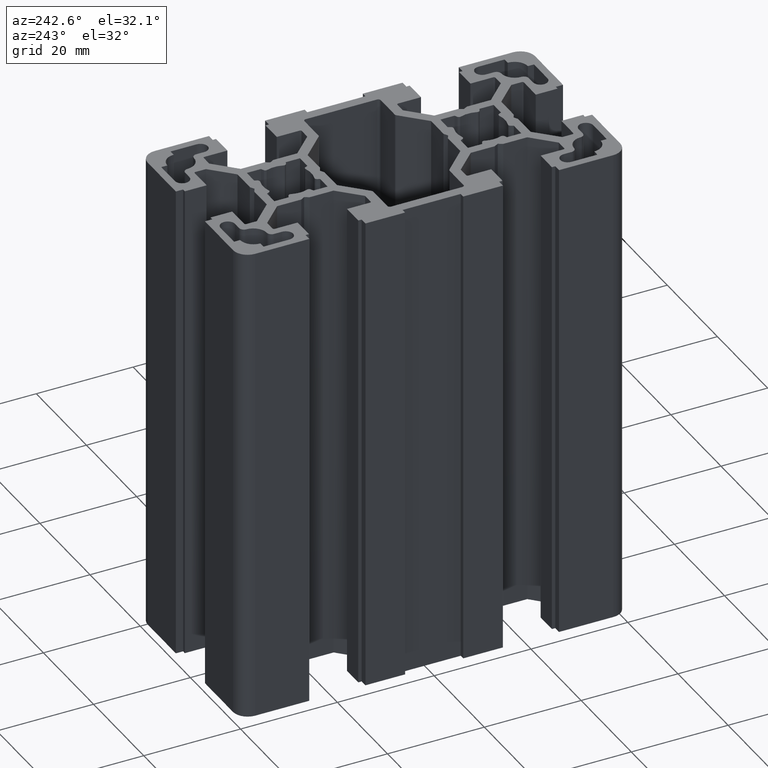
[diagram: clean part render]
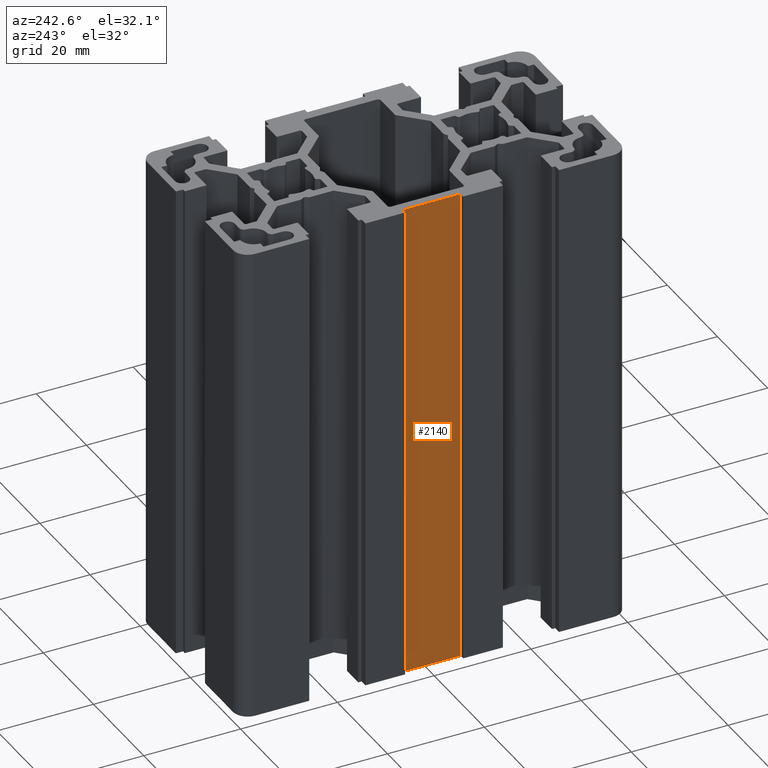
[diagram: same view with one face highlighted and labeled with its STEP entity id]
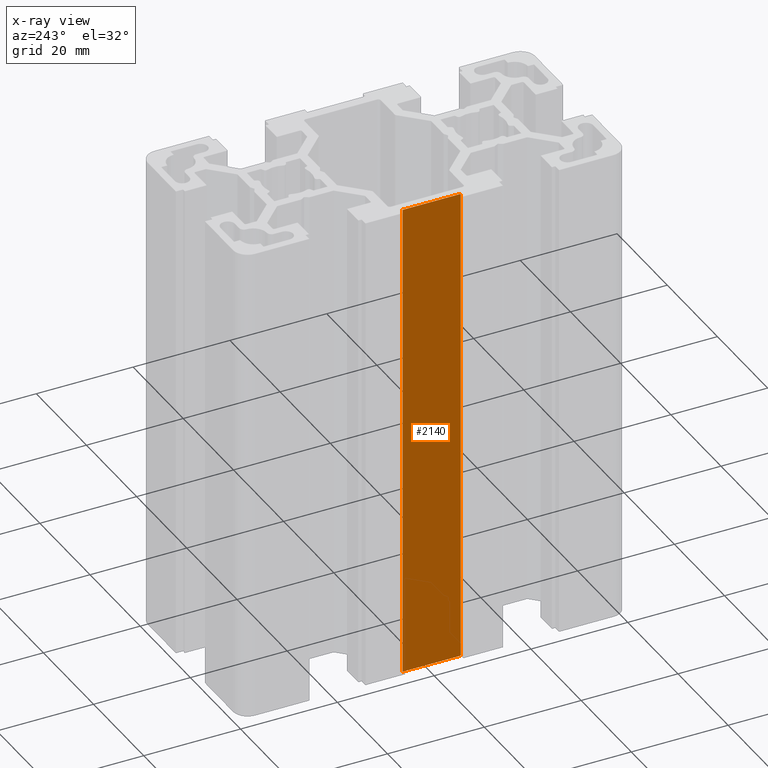
[diagram: x-ray of the same camera — body ghosted, the highlighted face saturated]
A machine part, auxiliary view. The second image highlights one B-rep face of the part: STEP entity #2140.
The next image is the same camera in x-ray: the body ghosted, the highlighted face saturated — about 0% of this face is hidden behind the body in this view.
In plain terms, the highlighted planar face has unit normal (1, 0, 0).
Its self-contained STEP definition (entity closure, byte-faithful):
#1687 = EDGE_CURVE ( 'NONE', #1704, #1705, #6067, .T. ) ;
#1704 = VERTEX_POINT ( 'NONE', #6054 ) ;
#1705 = VERTEX_POINT ( 'NONE', #6093 ) ;
#2096 = EDGE_LOOP ( 'NONE', ( #2141, #2139, #2190, #2143 ) ) ;
#2137 = EDGE_CURVE ( 'NONE', #2781, #1705, #6866, .T. ) ;
#2139 = ORIENTED_EDGE ( 'NONE', *, *, #2137, .F. ) ;
#2140 = ADVANCED_FACE ( 'NONE', ( #6817 ), #6816, .F. ) ;
#2141 = ORIENTED_EDGE ( 'NONE', *, *, #1687, .T. ) ;
#2143 = ORIENTED_EDGE ( 'NONE', *, *, #2153, .T. ) ;
#2153 = EDGE_CURVE ( 'NONE', #2805, #1704, #6857, .T. ) ;
#2190 = ORIENTED_EDGE ( 'NONE', *, *, #2795, .F. ) ;
#2781 = VERTEX_POINT ( 'NONE', #7822 ) ;
#2795 = EDGE_CURVE ( 'NONE', #2805, #2781, #7557, .T. ) ;
#2805 = VERTEX_POINT ( 'NONE', #7849 ) ;
#6054 = CARTESIAN_POINT ( 'NONE',  ( -19.00000000000000000, 6.000000190734882100, 0.0000000000000000000 ) ) ;
#6064 = DIRECTION ( 'NONE',  ( -0.0000000000000000000, -1.000000000000000000, -0.0000000000000000000 ) ) ;
#6065 = VECTOR ( 'NONE', #6064, 1000.000000000000000 ) ;
#6066 = CARTESIAN_POINT ( 'NONE',  ( -19.00000000000000000, -5.999999809265117900, 0.0000000000000000000 ) ) ;
#6067 = LINE ( 'NONE', #6066, #6065 ) ;
#6093 = CARTESIAN_POINT ( 'NONE',  ( -19.00000000000000000, -5.999999809265117900, 0.0000000000000000000 ) ) ;
#6816 = PLANE ( 'NONE',  #6824 ) ;
#6817 = FACE_OUTER_BOUND ( 'NONE', #2096, .T. ) ;
#6824 = AXIS2_PLACEMENT_3D ( 'NONE', #6867, #6859, #6858 ) ;
#6846 = DIRECTION ( 'NONE',  ( -0.0000000000000000000, -0.0000000000000000000, -1.000000000000000000 ) ) ;
#6851 = VECTOR ( 'NONE', #6846, 1000.000000000000000 ) ;
#6852 = CARTESIAN_POINT ( 'NONE',  ( -19.00000000000000000, 6.000000190734882100, 100.0000000000000000 ) ) ;
#6857 = LINE ( 'NONE', #6852, #6851 ) ;
#6858 = DIRECTION ( 'NONE',  ( 0.0000000000000000000, 0.0000000000000000000, -1.000000000000000000 ) ) ;
#6859 = DIRECTION ( 'NONE',  ( 1.000000000000000000, 0.0000000000000000000, 0.0000000000000000000 ) ) ;
#6863 = DIRECTION ( 'NONE',  ( -0.0000000000000000000, -0.0000000000000000000, -1.000000000000000000 ) ) ;
#6864 = VECTOR ( 'NONE', #6863, 1000.000000000000000 ) ;
#6865 = CARTESIAN_POINT ( 'NONE',  ( -19.00000000000000000, -5.999999809265117900, 100.0000000000000000 ) ) ;
#6866 = LINE ( 'NONE', #6865, #6864 ) ;
#6867 = CARTESIAN_POINT ( 'NONE',  ( -19.00000000000000000, -5.999999809265117900, 100.0000000000000000 ) ) ;
#7556 = DIRECTION ( 'NONE',  ( -0.0000000000000000000, -1.000000000000000000, -0.0000000000000000000 ) ) ;
#7557 = LINE ( 'NONE', #7568, #7566 ) ;
#7566 = VECTOR ( 'NONE', #7556, 1000.000000000000000 ) ;
#7568 = CARTESIAN_POINT ( 'NONE',  ( -19.00000000000000000, -5.999999809265117900, 100.0000000000000000 ) ) ;
#7822 = CARTESIAN_POINT ( 'NONE',  ( -19.00000000000000000, -5.999999809265117900, 100.0000000000000000 ) ) ;
#7849 = CARTESIAN_POINT ( 'NONE',  ( -19.00000000000000000, 6.000000190734882100, 100.0000000000000000 ) ) ;